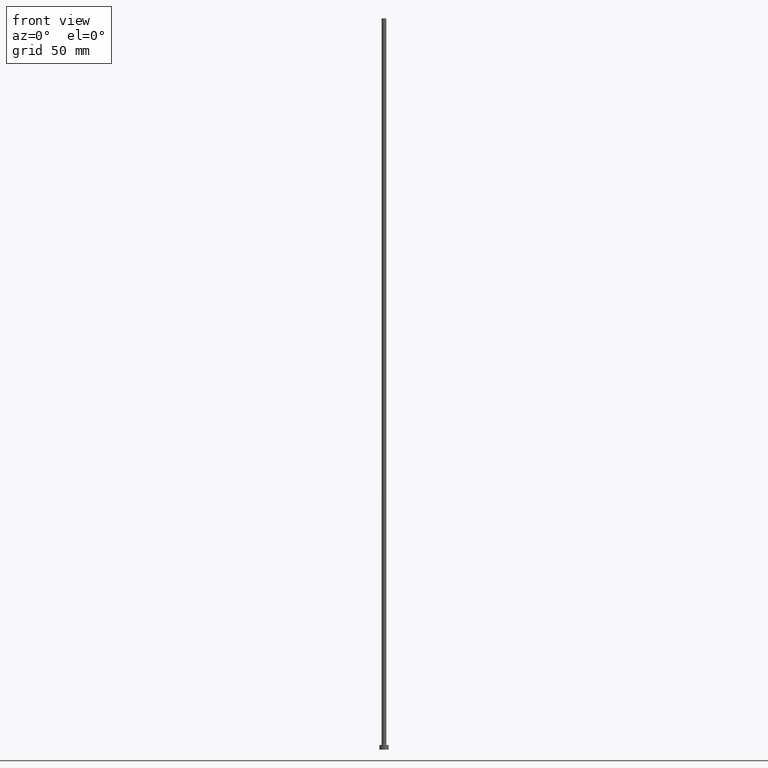
[diagram: clean part render]
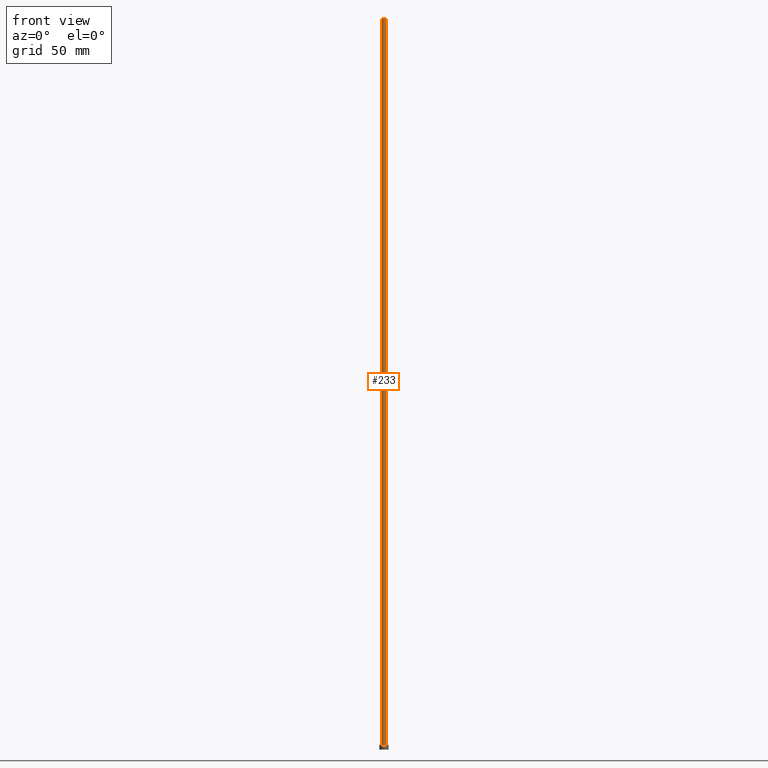
[diagram: same view with one face highlighted and labeled with its STEP entity id]
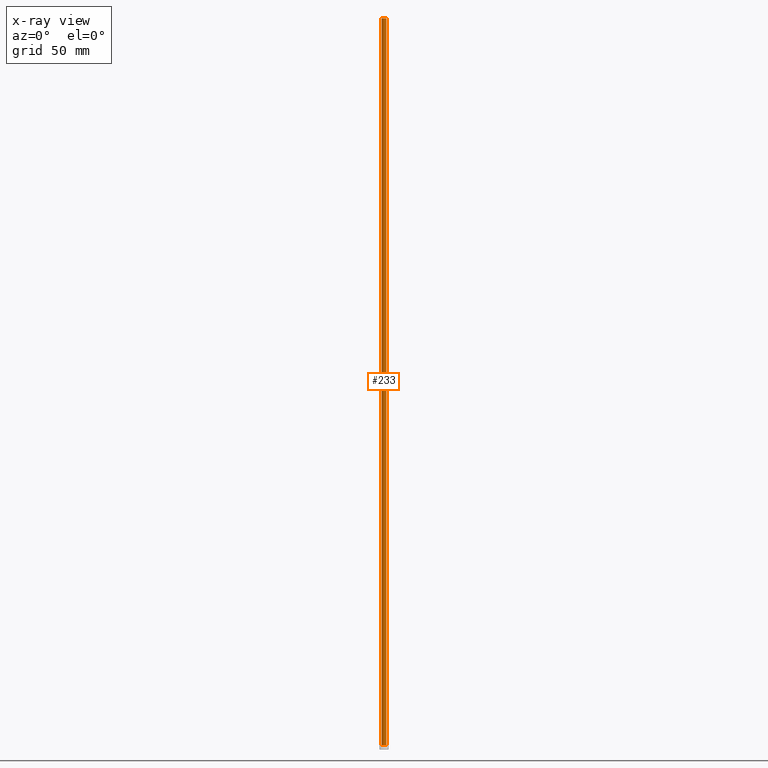
[diagram: x-ray of the same camera — body ghosted, the highlighted face saturated]
A machine part, front view. The second image highlights one B-rep face of the part: STEP entity #233.
The next image is the same camera in x-ray: the body ghosted, the highlighted face saturated — about 0% of this face is hidden behind the body in this view.
In plain terms, the highlighted cylindrical surface (edge-blend (fillet) strip) has radius 1 mm, axis along (-0, -0, -1).
Its self-contained STEP definition (entity closure, byte-faithful):
#5 = CARTESIAN_POINT ( 'NONE',  ( -1.000000000000000000, 0.000000000000000000, 2.000000000000000000 ) ) ;
#12 = CARTESIAN_POINT ( 'NONE',  ( 0.000000000000000000, 0.000000000000000000, 315.0000000000000000 ) ) ;
#15 = EDGE_CURVE ( 'NONE', #232, #218, #254, .T. ) ;
#22 = VERTEX_POINT ( 'NONE', #5 ) ;
#24 = VECTOR ( 'NONE', #64, 1000.000000000000000 ) ;
#28 = CARTESIAN_POINT ( 'NONE',  ( -1.000000000000000000, 0.000000000000000000, 315.0000000000000000 ) ) ;
#41 = DIRECTION ( 'NONE',  ( 1.000000000000000000, 0.000000000000000000, 0.000000000000000000 ) ) ;
#52 = DIRECTION ( 'NONE',  ( 0.000000000000000000, 0.000000000000000000, 1.000000000000000000 ) ) ;
#64 = DIRECTION ( 'NONE',  ( -0.000000000000000000, -0.000000000000000000, -1.000000000000000000 ) ) ;
#69 = CIRCLE ( 'NONE', #129, 1.000000000000000000 ) ;
#84 = AXIS2_PLACEMENT_3D ( 'NONE', #12, #113, #100 ) ;
#89 = ORIENTED_EDGE ( 'NONE', *, *, #116, .T. ) ;
#94 = ORIENTED_EDGE ( 'NONE', *, *, #208, .T. ) ;
#99 = VECTOR ( 'NONE', #187, 1000.000000000000000 ) ;
#100 = DIRECTION ( 'NONE',  ( -1.000000000000000000, 0.000000000000000000, 0.000000000000000000 ) ) ;
#101 = VERTEX_POINT ( 'NONE', #170 ) ;
#105 = ORIENTED_EDGE ( 'NONE', *, *, #15, .F. ) ;
#110 = CYLINDRICAL_SURFACE ( 'NONE', #84, 1.000000000000000000 ) ;
#113 = DIRECTION ( 'NONE',  ( -0.000000000000000000, -0.000000000000000000, -1.000000000000000000 ) ) ;
#114 = AXIS2_PLACEMENT_3D ( 'NONE', #160, #177, #157 ) ;
#116 = EDGE_CURVE ( 'NONE', #232, #22, #247, .T. ) ;
#118 = LINE ( 'NONE', #134, #24 ) ;
#122 = ORIENTED_EDGE ( 'NONE', *, *, #215, .F. ) ;
#129 = AXIS2_PLACEMENT_3D ( 'NONE', #159, #52, #41 ) ;
#134 = CARTESIAN_POINT ( 'NONE',  ( 1.000000000000000000, 1.224646799147353207E-16, 315.0000000000000000 ) ) ;
#135 = EDGE_LOOP ( 'NONE', ( #122, #105, #89, #94 ) ) ;
#157 = DIRECTION ( 'NONE',  ( 1.000000000000000000, 0.000000000000000000, 0.000000000000000000 ) ) ;
#159 = CARTESIAN_POINT ( 'NONE',  ( 0.000000000000000000, 0.000000000000000000, 2.000000000000000000 ) ) ;
#160 = CARTESIAN_POINT ( 'NONE',  ( 0.000000000000000000, 0.000000000000000000, 315.0000000000000000 ) ) ;
#170 = CARTESIAN_POINT ( 'NONE',  ( 1.000000000000000000, 1.224646799147353207E-16, 2.000000000000000000 ) ) ;
#172 = FACE_OUTER_BOUND ( 'NONE', #135, .T. ) ;
#177 = DIRECTION ( 'NONE',  ( 0.000000000000000000, 0.000000000000000000, 1.000000000000000000 ) ) ;
#187 = DIRECTION ( 'NONE',  ( -0.000000000000000000, -0.000000000000000000, -1.000000000000000000 ) ) ;
#208 = EDGE_CURVE ( 'NONE', #22, #101, #69, .T. ) ;
#215 = EDGE_CURVE ( 'NONE', #218, #101, #118, .T. ) ;
#218 = VERTEX_POINT ( 'NONE', #236 ) ;
#221 = CARTESIAN_POINT ( 'NONE',  ( -1.000000000000000000, 0.000000000000000000, 315.0000000000000000 ) ) ;
#232 = VERTEX_POINT ( 'NONE', #221 ) ;
#233 = ADVANCED_FACE ( 'NONE', ( #172 ), #110, .T. ) ;
#236 = CARTESIAN_POINT ( 'NONE',  ( 1.000000000000000000, 1.224646799147353207E-16, 315.0000000000000000 ) ) ;
#247 = LINE ( 'NONE', #28, #99 ) ;
#254 = CIRCLE ( 'NONE', #114, 1.000000000000000000 ) ;